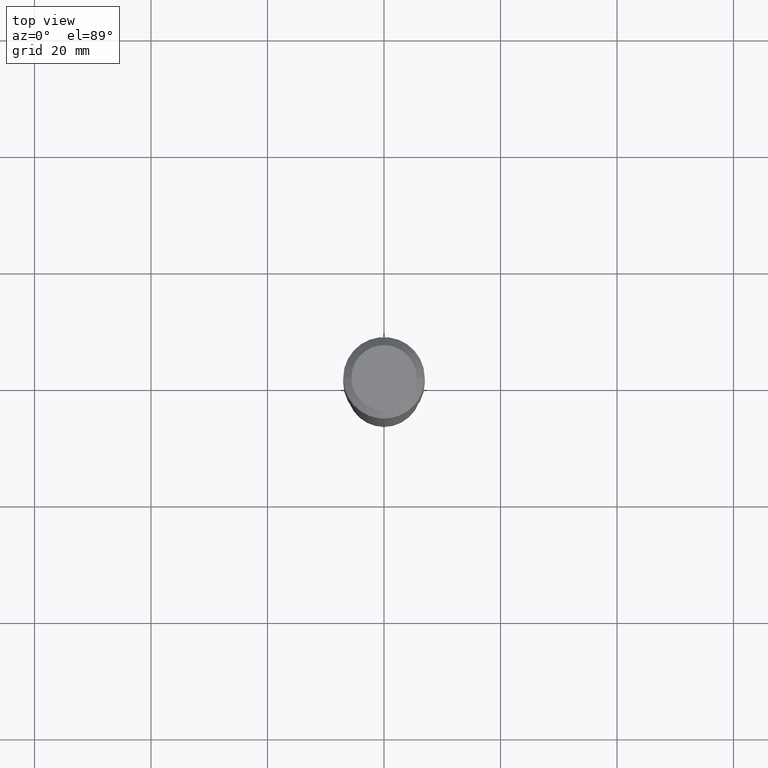
[diagram: clean part render]
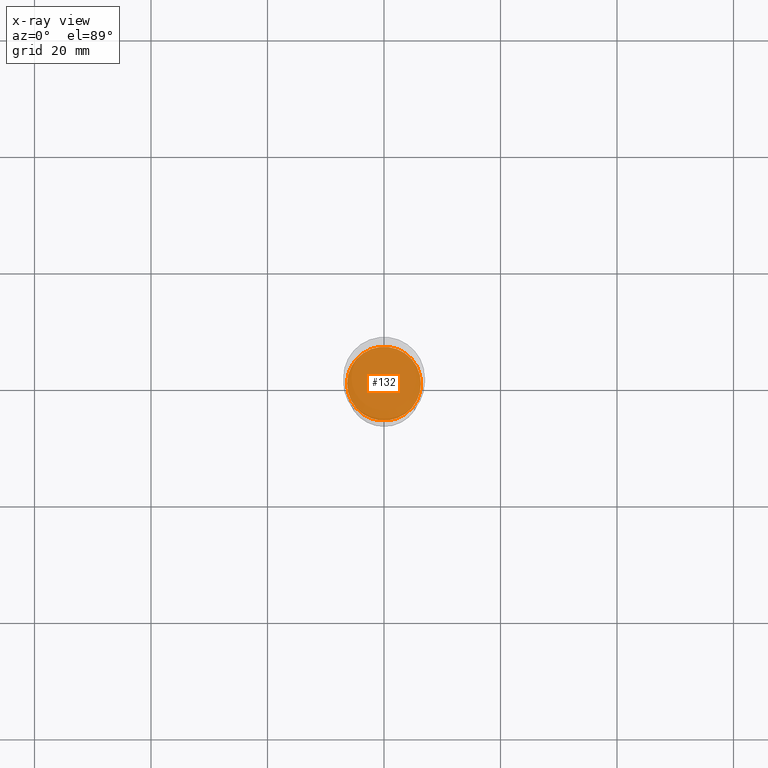
[diagram: x-ray — body ghosted, one internal face saturated and labeled with its STEP entity id]
A machine part, top view, then the same camera in x-ray: the body is ghosted and one INTERNAL B-rep face — a face not visible from any outside direction — is saturated and labeled: STEP entity #132.
In plain terms, the highlighted planar face has unit normal (-0, 0, 1).
Its self-contained STEP definition (entity closure, byte-faithful):
#23 = DIRECTION ( 'NONE',  ( 1.000000000000000000, -6.982962677686265922E-15, 4.876176775795935793E-29 ) ) ;
#24 = VERTEX_POINT ( 'NONE', #45 ) ;
#45 = CARTESIAN_POINT ( 'NONE',  ( -0.2494999999999999996, -6.429527793385829439E-15, -2.349999999999999645 ) ) ;
#76 = DIRECTION ( 'NONE',  ( 1.000000000000000000, -6.982962677686269077E-15, 0.000000000000000000 ) ) ;
#81 = DIRECTION ( 'NONE',  ( -2.445468806185136597E-29, 3.491481338843145583E-15, 1.000000000000000000 ) ) ;
#106 = CARTESIAN_POINT ( 'NONE',  ( 3.950077243030312596E-29, -1.077806442688700878E-14, -2.349999999999999201 ) ) ;
#132 = ADVANCED_FACE ( 'NONE', ( #277 ), #148, .F. ) ;
#148 = PLANE ( 'NONE',  #398 ) ;
#192 = CARTESIAN_POINT ( 'NONE',  ( 0.2494999999999999996, -9.947230334364113877E-15, -2.349999999999999645 ) ) ;
#193 = VERTEX_POINT ( 'NONE', #192 ) ;
#212 = EDGE_CURVE ( 'NONE', #193, #24, #354, .T. ) ;
#217 = AXIS2_PLACEMENT_3D ( 'NONE', #267, #486, #76 ) ;
#254 = DIRECTION ( 'NONE',  ( -2.438088387897960049E-29, 3.491481338843145188E-15, 1.000000000000000000 ) ) ;
#267 = CARTESIAN_POINT ( 'NONE',  ( 5.746851694535069433E-29, -8.204981146281390206E-15, -2.349999999999999645 ) ) ;
#277 = FACE_OUTER_BOUND ( 'NONE', #472, .T. ) ;
#287 = CIRCLE ( 'NONE', #331, 0.2494999999999999996 ) ;
#331 = AXIS2_PLACEMENT_3D ( 'NONE', #466, #81, #385 ) ;
#354 = CIRCLE ( 'NONE', #217, 0.2494999999999999996 ) ;
#385 = DIRECTION ( 'NONE',  ( 1.000000000000000000, -6.982962677686269077E-15, 0.000000000000000000 ) ) ;
#395 = ORIENTED_EDGE ( 'NONE', *, *, #212, .F. ) ;
#398 = AXIS2_PLACEMENT_3D ( 'NONE', #106, #254, #23 ) ;
#400 = ORIENTED_EDGE ( 'NONE', *, *, #485, .F. ) ;
#466 = CARTESIAN_POINT ( 'NONE',  ( 5.746851694535069433E-29, -8.204981146281390206E-15, -2.349999999999999645 ) ) ;
#472 = EDGE_LOOP ( 'NONE', ( #395, #400 ) ) ;
#485 = EDGE_CURVE ( 'NONE', #24, #193, #287, .T. ) ;
#486 = DIRECTION ( 'NONE',  ( -2.445468806185136597E-29, 3.491481338843145583E-15, 1.000000000000000000 ) ) ;